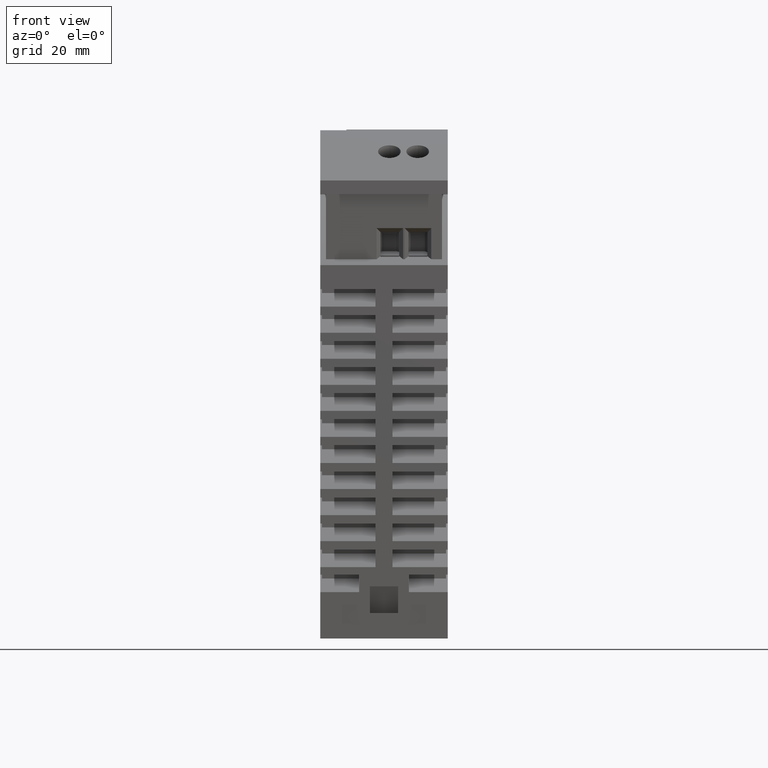
[diagram: clean part render]
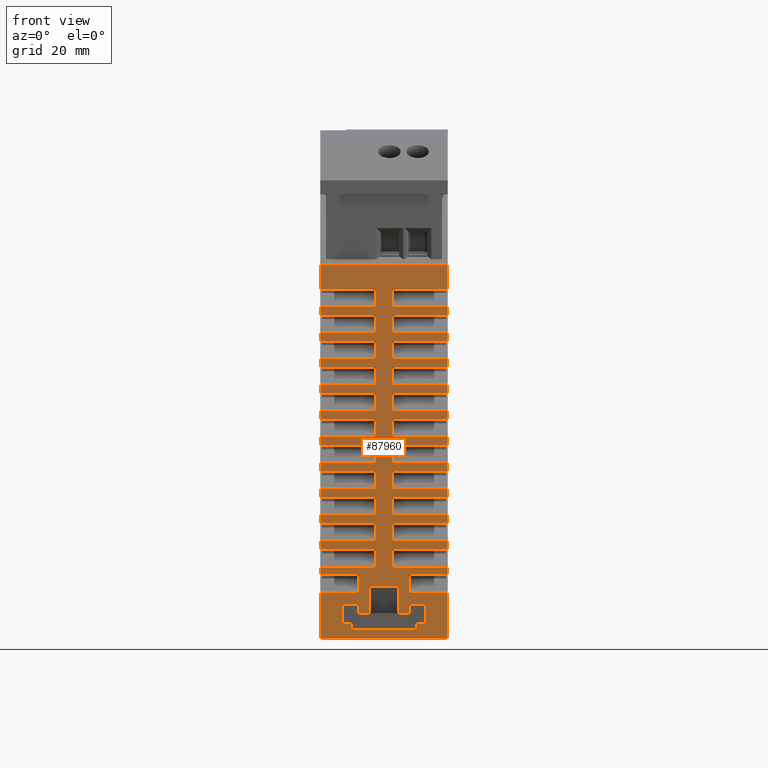
[diagram: same view with one face highlighted and labeled with its STEP entity id]
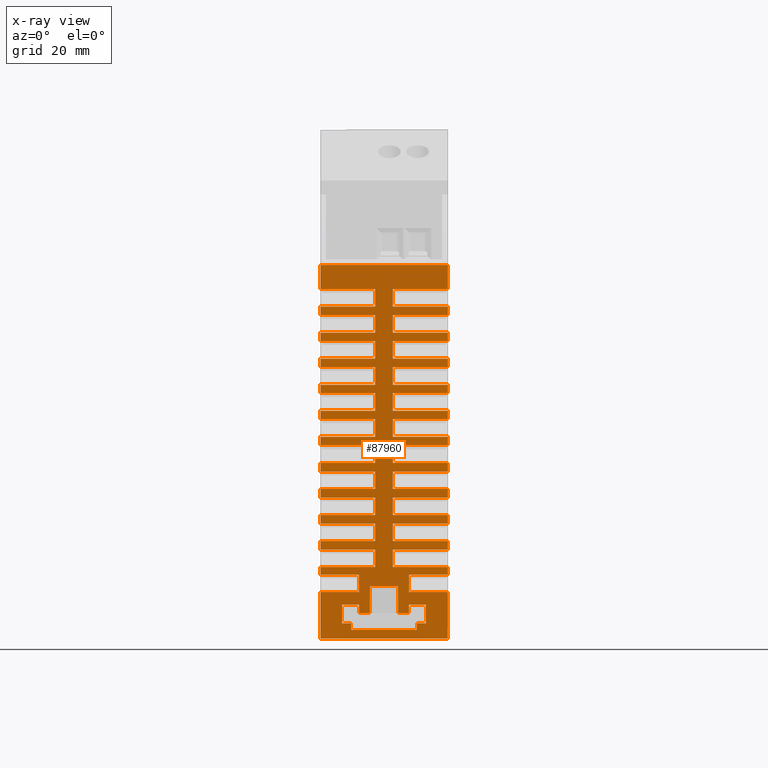
[diagram: x-ray of the same camera — body ghosted, the highlighted face saturated]
A machine part, front view. The second image highlights one B-rep face of the part: STEP entity #87960.
The next image is the same camera in x-ray: the body ghosted, the highlighted face saturated — about 0% of this face is hidden behind the body in this view.
In plain terms, the highlighted planar face has unit normal (0, -1, 0).
Its self-contained STEP definition (entity closure, byte-faithful):
#10010=CARTESIAN_POINT('',(-45.0015236073532,65.9624132898226,-21.5));
#10020=VERTEX_POINT('',#10010);
#11120=CARTESIAN_POINT('',(-45.0015236073532,65.9624132898226,1.));
#11130=VERTEX_POINT('',#11120);
#11160=CARTESIAN_POINT('',(-45.0015236073532,65.9624132898226,-54.));
#11170=DIRECTION('',(0.,0.,1.));
#11180=VECTOR('',#11170,1.);
#11190=LINE('',#11160,#11180);
#11200=EDGE_CURVE('',#10020,#11130,#11190,.T.);
#66930=CARTESIAN_POINT('',(-45.0015236073532,15.7196322079491,1.));
#66940=VERTEX_POINT('',#66930);
#66970=CARTESIAN_POINT('',(-45.0015236073671,0.,1.));
#66980=DIRECTION('',(0.,1.,0.));
#66990=VECTOR('',#66980,1.);
#67000=LINE('',#66970,#66990);
#67010=CARTESIAN_POINT('',(-45.0015236073532,17.2196322079585,1.));
#67020=VERTEX_POINT('',#67010);
#67030=EDGE_CURVE('',#66940,#67020,#67000,.T.);
#67270=CARTESIAN_POINT('',(-45.0015236073532,20.3196322079585,1.));
#67280=VERTEX_POINT('',#67270);
#67310=CARTESIAN_POINT('',(-45.0015236073532,21.8196322079584,1.));
#67320=VERTEX_POINT('',#67310);
#67330=EDGE_CURVE('',#67280,#67320,#67000,.T.);
#67570=CARTESIAN_POINT('',(-45.0015236073532,24.9196322079585,1.));
#67580=VERTEX_POINT('',#67570);
#67610=CARTESIAN_POINT('',(-45.0015236073532,26.4196322079584,1.));
#67620=VERTEX_POINT('',#67610);
#67630=EDGE_CURVE('',#67580,#67620,#67000,.T.);
#67870=CARTESIAN_POINT('',(-45.0015236073532,29.5196322079585,1.));
#67880=VERTEX_POINT('',#67870);
#67910=CARTESIAN_POINT('',(-45.0015236073532,31.0196322079584,1.));
#67920=VERTEX_POINT('',#67910);
#67930=EDGE_CURVE('',#67880,#67920,#67000,.T.);
#68170=CARTESIAN_POINT('',(-45.0015236073532,34.1196322079584,1.));
#68180=VERTEX_POINT('',#68170);
#68210=CARTESIAN_POINT('',(-45.0015236073532,35.6196322079584,1.));
#68220=VERTEX_POINT('',#68210);
#68230=EDGE_CURVE('',#68180,#68220,#67000,.T.);
#68470=CARTESIAN_POINT('',(-45.0015236073532,38.7196322079491,1.));
#68480=VERTEX_POINT('',#68470);
#68510=CARTESIAN_POINT('',(-45.0015236073532,40.2196322079583,1.));
#68520=VERTEX_POINT('',#68510);
#68530=EDGE_CURVE('',#68480,#68520,#67000,.T.);
#68770=CARTESIAN_POINT('',(-45.0015236073532,43.3196322079584,1.));
#68780=VERTEX_POINT('',#68770);
#68810=CARTESIAN_POINT('',(-45.0015236073532,44.8196322079584,1.));
#68820=VERTEX_POINT('',#68810);
#68830=EDGE_CURVE('',#68780,#68820,#67000,.T.);
#69070=CARTESIAN_POINT('',(-45.0015236073532,47.9196322079585,1.));
#69080=VERTEX_POINT('',#69070);
#69110=CARTESIAN_POINT('',(-45.0015236073532,49.4196322079585,1.));
#69120=VERTEX_POINT('',#69110);
#69130=EDGE_CURVE('',#69080,#69120,#67000,.T.);
#69370=CARTESIAN_POINT('',(-45.0015236073532,52.5196322079585,1.));
#69380=VERTEX_POINT('',#69370);
#69410=CARTESIAN_POINT('',(-45.0015236073532,54.0196322079584,1.));
#69420=VERTEX_POINT('',#69410);
#69430=EDGE_CURVE('',#69380,#69420,#67000,.T.);
#69670=CARTESIAN_POINT('',(-45.0015236073532,57.1196322079585,1.));
#69680=VERTEX_POINT('',#69670);
#69710=CARTESIAN_POINT('',(-45.0015236073532,58.6196322079583,1.));
#69720=VERTEX_POINT('',#69710);
#69730=EDGE_CURVE('',#69680,#69720,#67000,.T.);
#69970=CARTESIAN_POINT('',(-45.0015236073532,61.7196322079586,1.));
#69980=VERTEX_POINT('',#69970);
#70010=EDGE_CURVE('',#69980,#11130,#67000,.T.);
#73490=CARTESIAN_POINT('',(-45.0015236073532,0.029072276211352,1.));
#73500=VERTEX_POINT('',#73490);
#73530=CARTESIAN_POINT('',(-45.0015236073532,0.,1.));
#73540=DIRECTION('',(0.,-1.,0.));
#73550=VECTOR('',#73540,1.);
#73560=LINE('',#73530,#73550);
#73570=CARTESIAN_POINT('',(-45.0015236073532,8.20470011037345,1.));
#73580=VERTEX_POINT('',#73570);
#73590=EDGE_CURVE('',#73580,#73500,#73560,.T.);
#73830=CARTESIAN_POINT('',(-45.0015236073532,11.3047001103734,1.));
#73840=VERTEX_POINT('',#73830);
#73870=CARTESIAN_POINT('',(-45.0015236073532,12.6196322079583,1.));
#73880=VERTEX_POINT('',#73870);
#73890=EDGE_CURVE('',#73880,#73840,#73560,.T.);
#79420=CARTESIAN_POINT('',(-45.0015236073532,61.7196322079586,-8.75));
#79430=VERTEX_POINT('',#79420);
#79460=CARTESIAN_POINT('',(-45.0015236073532,61.7196322079586,-25.));
#79470=DIRECTION('',(0.,0.,-1.));
#79480=VECTOR('',#79470,1.);
#79490=LINE('',#79460,#79480);
#79500=EDGE_CURVE('',#69980,#79430,#79490,.T.);
#79980=CARTESIAN_POINT('',(-45.0015236073532,47.9196322079585,-8.75));
#79990=VERTEX_POINT('',#79980);
#80020=CARTESIAN_POINT('',(-45.0015236073532,47.9196322079585,-25.));
#80030=DIRECTION('',(0.,0.,-1.));
#80040=VECTOR('',#80030,1.);
#80050=LINE('',#80020,#80040);
#80060=EDGE_CURVE('',#69080,#79990,#80050,.T.);
#80370=CARTESIAN_POINT('',(-45.0015236073532,44.8196322079584,-8.75));
#80380=VERTEX_POINT('',#80370);
#80410=CARTESIAN_POINT('',(-45.0015236073532,0.,-8.75));
#80420=DIRECTION('',(0.,1.,0.));
#80430=VECTOR('',#80420,1.);
#80440=LINE('',#80410,#80430);
#80450=EDGE_CURVE('',#80380,#79990,#80440,.T.);
#81200=CARTESIAN_POINT('',(-45.0015236073532,90.0290722762114,1.));
#81210=DIRECTION('',(-1.,0.,0.));
#81220=DIRECTION('',(0.,-1.,0.));
#81230=AXIS2_PLACEMENT_3D('',#81200,#81210,#81220);
#81240=PLANE('',#81230);
#81250=CARTESIAN_POINT('',(-45.0015236073532,0.,-12.75));
#81260=DIRECTION('',(0.,1.,0.));
#81270=VECTOR('',#81260,1.);
#81280=LINE('',#81250,#81270);
#81290=CARTESIAN_POINT('',(-45.0015236073532,4.52907227621135,-12.75));
#81300=VERTEX_POINT('',#81290);
#81310=CARTESIAN_POINT('',(-45.0015236073532,9.22453163117316,-12.75));
#81320=VERTEX_POINT('',#81310);
#81330=EDGE_CURVE('',#81300,#81320,#81280,.T.);
#81340=ORIENTED_EDGE('',*,*,#81330,.T.);
#81350=CARTESIAN_POINT('',(-45.0015236073532,4.52907227621135,16.25));
#81360=DIRECTION('',(0.,0.,1.));
#81370=VECTOR('',#81360,1.);
#81380=LINE('',#81350,#81370);
#81390=CARTESIAN_POINT('',(-45.0015236073532,4.52907227621135,-14.65));
#81400=VERTEX_POINT('',#81390);
#81410=EDGE_CURVE('',#81400,#81300,#81380,.T.);
#81420=ORIENTED_EDGE('',*,*,#81410,.T.);
#81430=CARTESIAN_POINT('',(-45.0015236073532,0.,-14.65));
#81440=DIRECTION('',(0.,1.,0.));
#81450=VECTOR('',#81440,1.);
#81460=LINE('',#81430,#81450);
#81470=CARTESIAN_POINT('',(-45.0015236073532,6.02907227621138,-14.65));
#81480=VERTEX_POINT('',#81470);
#81490=EDGE_CURVE('',#81400,#81480,#81460,.T.);
#81500=ORIENTED_EDGE('',*,*,#81490,.F.);
#81510=CARTESIAN_POINT('',(-45.0015236073532,6.02907227621138,16.25));
#81520=DIRECTION('',(0.,0.,-1.));
#81530=VECTOR('',#81520,1.);
#81540=LINE('',#81510,#81530);
#81550=CARTESIAN_POINT('',(-45.0015236073532,6.02907227621138,-17.65));
#81560=VERTEX_POINT('',#81550);
#81570=EDGE_CURVE('',#81480,#81560,#81540,.T.);
#81580=ORIENTED_EDGE('',*,*,#81570,.F.);
#81590=CARTESIAN_POINT('',(-45.0015236073532,0.,-17.65));
#81600=DIRECTION('',(0.,-1.,0.));
#81610=VECTOR('',#81600,1.);
#81620=LINE('',#81590,#81610);
#81630=CARTESIAN_POINT('',(-45.0015236073532,2.67907227621139,-17.65));
#81640=VERTEX_POINT('',#81630);
#81650=EDGE_CURVE('',#81560,#81640,#81620,.T.);
#81660=ORIENTED_EDGE('',*,*,#81650,.F.);
#81670=CARTESIAN_POINT('',(-45.0015236073532,2.67907227621139,16.25));
#81680=DIRECTION('',(0.,0.,1.));
#81690=VECTOR('',#81680,1.);
#81700=LINE('',#81670,#81690);
#81710=CARTESIAN_POINT('',(-45.0015236073532,2.67907227621139,-16.05));
#81720=VERTEX_POINT('',#81710);
#81730=EDGE_CURVE('',#81640,#81720,#81700,.T.);
#81740=ORIENTED_EDGE('',*,*,#81730,.F.);
#81750=CARTESIAN_POINT('',(-45.0015236073532,0.,-16.05));
#81760=DIRECTION('',(0.,-1.,0.));
#81770=VECTOR('',#81760,1.);
#81780=LINE('',#81750,#81770);
#81790=CARTESIAN_POINT('',(-45.0015236073532,1.52907227621138,-16.05));
#81800=VERTEX_POINT('',#81790);
#81810=EDGE_CURVE('',#81720,#81800,#81780,.T.);
#81820=ORIENTED_EDGE('',*,*,#81810,.F.);
#81830=CARTESIAN_POINT('',(-45.0015236073532,1.52907227621138,16.25));
#81840=DIRECTION('',(0.,0.,1.));
#81850=VECTOR('',#81840,1.);
#81860=LINE('',#81830,#81850);
#81870=CARTESIAN_POINT('',(-45.0015236073532,1.52907227621138,-4.45));
#81880=VERTEX_POINT('',#81870);
#81890=EDGE_CURVE('',#81800,#81880,#81860,.T.);
#81900=ORIENTED_EDGE('',*,*,#81890,.F.);
#81910=CARTESIAN_POINT('',(-45.0015236073532,0.,-4.45));
#81920=DIRECTION('',(0.,1.,0.));
#81930=VECTOR('',#81920,1.);
#81940=LINE('',#81910,#81930);
#81950=CARTESIAN_POINT('',(-45.0015236073532,2.67907227621139,-4.45));
#81960=VERTEX_POINT('',#81950);
#81970=EDGE_CURVE('',#81880,#81960,#81940,.T.);
#81980=ORIENTED_EDGE('',*,*,#81970,.F.);
#81990=CARTESIAN_POINT('',(-45.0015236073532,2.67907227621139,16.25));
#82000=DIRECTION('',(0.,0.,1.));
#82010=VECTOR('',#82000,1.);
#82020=LINE('',#81990,#82010);
#82030=CARTESIAN_POINT('',(-45.0015236073532,2.67907227621139,-2.85));
#82040=VERTEX_POINT('',#82030);
#82050=EDGE_CURVE('',#81960,#82040,#82020,.T.);
#82060=ORIENTED_EDGE('',*,*,#82050,.F.);
#82070=CARTESIAN_POINT('',(-45.0015236073532,0.,-2.85));
#82080=DIRECTION('',(0.,1.,0.));
#82090=VECTOR('',#82080,1.);
#82100=LINE('',#82070,#82090);
#82110=CARTESIAN_POINT('',(-45.0015236073532,6.02907227621138,-2.85));
#82120=VERTEX_POINT('',#82110);
#82130=EDGE_CURVE('',#82040,#82120,#82100,.T.);
#82140=ORIENTED_EDGE('',*,*,#82130,.F.);
#82150=CARTESIAN_POINT('',(-45.0015236073532,6.02907227621138,16.25));
#82160=DIRECTION('',(0.,0.,-1.));
#82170=VECTOR('',#82160,1.);
#82180=LINE('',#82150,#82170);
#82190=CARTESIAN_POINT('',(-45.0015236073532,6.02907227621138,-5.85));
#82200=VERTEX_POINT('',#82190);
#82210=EDGE_CURVE('',#82120,#82200,#82180,.T.);
#82220=ORIENTED_EDGE('',*,*,#82210,.F.);
#82230=CARTESIAN_POINT('',(-45.0015236073532,0.,-5.85));
#82240=DIRECTION('',(0.,-1.,0.));
#82250=VECTOR('',#82240,1.);
#82260=LINE('',#82230,#82250);
#82270=CARTESIAN_POINT('',(-45.0015236073532,4.52907227621135,-5.85));
#82280=VERTEX_POINT('',#82270);
#82290=EDGE_CURVE('',#82200,#82280,#82260,.T.);
#82300=ORIENTED_EDGE('',*,*,#82290,.F.);
#82310=CARTESIAN_POINT('',(-45.0015236073532,4.52907227621135,16.25));
#82320=DIRECTION('',(0.,0.,1.));
#82330=VECTOR('',#82320,1.);
#82340=LINE('',#82310,#82330);
#82350=CARTESIAN_POINT('',(-45.0015236073532,4.52907227621135,-7.75));
#82360=VERTEX_POINT('',#82350);
#82370=EDGE_CURVE('',#82360,#82280,#82340,.T.);
#82380=ORIENTED_EDGE('',*,*,#82370,.T.);
#82390=CARTESIAN_POINT('',(-45.0015236073532,0.,-7.75));
#82400=DIRECTION('',(0.,1.,0.));
#82410=VECTOR('',#82400,1.);
#82420=LINE('',#82390,#82410);
#82430=CARTESIAN_POINT('',(-45.0015236073532,9.22453163121141,-7.75));
#82440=VERTEX_POINT('',#82430);
#82450=EDGE_CURVE('',#82360,#82440,#82420,.T.);
#82460=ORIENTED_EDGE('',*,*,#82450,.F.);
#82470=CARTESIAN_POINT('',(-45.0015236073532,9.22453163117316,16.25));
#82480=DIRECTION('',(0.,0.,-1.));
#82490=VECTOR('',#82480,1.);
#82500=LINE('',#82470,#82490);
#82510=EDGE_CURVE('',#82440,#81320,#82500,.T.);
#82520=ORIENTED_EDGE('',*,*,#82510,.F.);
#82530=EDGE_LOOP('',(#82520,#82460,#82380,#82300,#82220,#82140,#82060,
#81980,#81900,#81820,#81740,#81660,#81580,#81500,#81420,#81340));
#82540=FACE_BOUND('',#82530,.T.);
#82550=ORIENTED_EDGE('',*,*,#79500,.F.);
#82560=CARTESIAN_POINT('',(-45.0015236073532,0.,-8.75));
#82570=DIRECTION('',(0.,1.,0.));
#82580=VECTOR('',#82570,1.);
#82590=LINE('',#82560,#82580);
#82600=CARTESIAN_POINT('',(-45.0015236073532,58.6196322079583,-8.75));
#82610=VERTEX_POINT('',#82600);
#82620=EDGE_CURVE('',#82610,#79430,#82590,.T.);
#82630=ORIENTED_EDGE('',*,*,#82620,.T.);
#82640=CARTESIAN_POINT('',(-45.0015236073532,58.6196322079583,-25.));
#82650=DIRECTION('',(0.,0.,1.));
#82660=VECTOR('',#82650,1.);
#82670=LINE('',#82640,#82660);
#82680=EDGE_CURVE('',#82610,#69720,#82670,.T.);
#82690=ORIENTED_EDGE('',*,*,#82680,.F.);
#82700=ORIENTED_EDGE('',*,*,#69730,.T.);
#82710=CARTESIAN_POINT('',(-45.0015236073532,57.1196322079585,-25.));
#82720=DIRECTION('',(0.,0.,-1.));
#82730=VECTOR('',#82720,1.);
#82740=LINE('',#82710,#82730);
#82750=CARTESIAN_POINT('',(-45.0015236073532,57.1196322079585,-8.75));
#82760=VERTEX_POINT('',#82750);
#82770=EDGE_CURVE('',#69680,#82760,#82740,.T.);
#82780=ORIENTED_EDGE('',*,*,#82770,.F.);
#82790=CARTESIAN_POINT('',(-45.0015236073532,54.0196322079584,-8.75));
#82800=VERTEX_POINT('',#82790);
#82810=EDGE_CURVE('',#82800,#82760,#80440,.T.);
#82820=ORIENTED_EDGE('',*,*,#82810,.T.);
#82830=CARTESIAN_POINT('',(-45.0015236073532,54.0196322079584,-25.));
#82840=DIRECTION('',(0.,0.,1.));
#82850=VECTOR('',#82840,1.);
#82860=LINE('',#82830,#82850);
#82870=EDGE_CURVE('',#82800,#69420,#82860,.T.);
#82880=ORIENTED_EDGE('',*,*,#82870,.F.);
#82890=ORIENTED_EDGE('',*,*,#69430,.T.);
#82900=CARTESIAN_POINT('',(-45.0015236073532,52.5196322079585,-25.));
#82910=DIRECTION('',(0.,0.,-1.));
#82920=VECTOR('',#82910,1.);
#82930=LINE('',#82900,#82920);
#82940=CARTESIAN_POINT('',(-45.0015236073532,52.5196322079585,-8.75));
#82950=VERTEX_POINT('',#82940);
#82960=EDGE_CURVE('',#69380,#82950,#82930,.T.);
#82970=ORIENTED_EDGE('',*,*,#82960,.F.);
#82980=CARTESIAN_POINT('',(-45.0015236073532,49.4196322079585,-8.75));
#82990=VERTEX_POINT('',#82980);
#83000=EDGE_CURVE('',#82990,#82950,#80440,.T.);
#83010=ORIENTED_EDGE('',*,*,#83000,.T.);
#83020=CARTESIAN_POINT('',(-45.0015236073532,49.4196322079585,-25.));
#83030=DIRECTION('',(0.,0.,1.));
#83040=VECTOR('',#83030,1.);
#83050=LINE('',#83020,#83040);
#83060=EDGE_CURVE('',#82990,#69120,#83050,.T.);
#83070=ORIENTED_EDGE('',*,*,#83060,.F.);
#83080=ORIENTED_EDGE('',*,*,#69130,.T.);
#83090=ORIENTED_EDGE('',*,*,#80060,.F.);
#83100=ORIENTED_EDGE('',*,*,#80450,.T.);
#83110=CARTESIAN_POINT('',(-45.0015236073532,44.8196322079584,-25.));
#83120=DIRECTION('',(0.,0.,1.));
#83130=VECTOR('',#83120,1.);
#83140=LINE('',#83110,#83130);
#83150=EDGE_CURVE('',#80380,#68820,#83140,.T.);
#83160=ORIENTED_EDGE('',*,*,#83150,.F.);
#83170=ORIENTED_EDGE('',*,*,#68830,.T.);
#83180=CARTESIAN_POINT('',(-45.0015236073532,43.3196322079584,-25.));
#83190=DIRECTION('',(0.,0.,-1.));
#83200=VECTOR('',#83190,1.);
#83210=LINE('',#83180,#83200);
#83220=CARTESIAN_POINT('',(-45.0015236073532,43.3196322079584,-8.75));
#83230=VERTEX_POINT('',#83220);
#83240=EDGE_CURVE('',#68780,#83230,#83210,.T.);
#83250=ORIENTED_EDGE('',*,*,#83240,.F.);
#83260=CARTESIAN_POINT('',(-45.0015236073532,40.2196322079583,-8.75));
#83270=VERTEX_POINT('',#83260);
#83280=EDGE_CURVE('',#83270,#83230,#80440,.T.);
#83290=ORIENTED_EDGE('',*,*,#83280,.T.);
#83300=CARTESIAN_POINT('',(-45.0015236073532,40.2196322079583,-25.));
#83310=DIRECTION('',(0.,0.,1.));
#83320=VECTOR('',#83310,1.);
#83330=LINE('',#83300,#83320);
#83340=EDGE_CURVE('',#83270,#68520,#83330,.T.);
#83350=ORIENTED_EDGE('',*,*,#83340,.F.);
#83360=ORIENTED_EDGE('',*,*,#68530,.T.);
#83370=CARTESIAN_POINT('',(-45.0015236073532,38.7196322079491,-25.));
#83380=DIRECTION('',(0.,0.,-1.));
#83390=VECTOR('',#83380,1.);
#83400=LINE('',#83370,#83390);
#83410=CARTESIAN_POINT('',(-45.0015236073532,38.7196322079491,-8.75));
#83420=VERTEX_POINT('',#83410);
#83430=EDGE_CURVE('',#68480,#83420,#83400,.T.);
#83440=ORIENTED_EDGE('',*,*,#83430,.F.);
#83450=CARTESIAN_POINT('',(-45.0015236073532,35.6196322079584,-8.75));
#83460=VERTEX_POINT('',#83450);
#83470=EDGE_CURVE('',#83460,#83420,#80440,.T.);
#83480=ORIENTED_EDGE('',*,*,#83470,.T.);
#83490=CARTESIAN_POINT('',(-45.0015236073532,35.6196322079584,-25.));
#83500=DIRECTION('',(0.,0.,1.));
#83510=VECTOR('',#83500,1.);
#83520=LINE('',#83490,#83510);
#83530=EDGE_CURVE('',#83460,#68220,#83520,.T.);
#83540=ORIENTED_EDGE('',*,*,#83530,.F.);
#83550=ORIENTED_EDGE('',*,*,#68230,.T.);
#83560=CARTESIAN_POINT('',(-45.0015236073532,34.1196322079584,-25.));
#83570=DIRECTION('',(0.,0.,-1.));
#83580=VECTOR('',#83570,1.);
#83590=LINE('',#83560,#83580);
#83600=CARTESIAN_POINT('',(-45.0015236073532,34.1196322079584,-8.75));
#83610=VERTEX_POINT('',#83600);
#83620=EDGE_CURVE('',#68180,#83610,#83590,.T.);
#83630=ORIENTED_EDGE('',*,*,#83620,.F.);
#83640=CARTESIAN_POINT('',(-45.0015236073532,31.0196322079584,-8.75));
#83650=VERTEX_POINT('',#83640);
#83660=EDGE_CURVE('',#83650,#83610,#80440,.T.);
#83670=ORIENTED_EDGE('',*,*,#83660,.T.);
#83680=CARTESIAN_POINT('',(-45.0015236073532,31.0196322079584,-25.));
#83690=DIRECTION('',(0.,0.,1.));
#83700=VECTOR('',#83690,1.);
#83710=LINE('',#83680,#83700);
#83720=EDGE_CURVE('',#83650,#67920,#83710,.T.);
#83730=ORIENTED_EDGE('',*,*,#83720,.F.);
#83740=ORIENTED_EDGE('',*,*,#67930,.T.);
#83750=CARTESIAN_POINT('',(-45.0015236073532,29.5196322079585,-25.));
#83760=DIRECTION('',(0.,0.,-1.));
#83770=VECTOR('',#83760,1.);
#83780=LINE('',#83750,#83770);
#83790=CARTESIAN_POINT('',(-45.0015236073532,29.5196322079585,-8.75));
#83800=VERTEX_POINT('',#83790);
#83810=EDGE_CURVE('',#67880,#83800,#83780,.T.);
#83820=ORIENTED_EDGE('',*,*,#83810,.F.);
#83830=CARTESIAN_POINT('',(-45.0015236073532,26.4196322079584,-8.75));
#83840=VERTEX_POINT('',#83830);
#83850=EDGE_CURVE('',#83840,#83800,#80440,.T.);
#83860=ORIENTED_EDGE('',*,*,#83850,.T.);
#83870=CARTESIAN_POINT('',(-45.0015236073532,26.4196322079584,-25.));
#83880=DIRECTION('',(0.,0.,1.));
#83890=VECTOR('',#83880,1.);
#83900=LINE('',#83870,#83890);
#83910=EDGE_CURVE('',#83840,#67620,#83900,.T.);
#83920=ORIENTED_EDGE('',*,*,#83910,.F.);
#83930=ORIENTED_EDGE('',*,*,#67630,.T.);
#83940=CARTESIAN_POINT('',(-45.0015236073532,24.9196322079585,-25.));
#83950=DIRECTION('',(0.,0.,-1.));
#83960=VECTOR('',#83950,1.);
#83970=LINE('',#83940,#83960);
#83980=CARTESIAN_POINT('',(-45.0015236073532,24.9196322079585,-8.75));
#83990=VERTEX_POINT('',#83980);
#84000=EDGE_CURVE('',#67580,#83990,#83970,.T.);
#84010=ORIENTED_EDGE('',*,*,#84000,.F.);
#84020=CARTESIAN_POINT('',(-45.0015236073532,21.8196322079584,-8.75));
#84030=VERTEX_POINT('',#84020);
#84040=EDGE_CURVE('',#84030,#83990,#80440,.T.);
#84050=ORIENTED_EDGE('',*,*,#84040,.T.);
#84060=CARTESIAN_POINT('',(-45.0015236073532,21.8196322079584,-25.));
#84070=DIRECTION('',(0.,0.,1.));
#84080=VECTOR('',#84070,1.);
#84090=LINE('',#84060,#84080);
#84100=EDGE_CURVE('',#84030,#67320,#84090,.T.);
#84110=ORIENTED_EDGE('',*,*,#84100,.F.);
#84120=ORIENTED_EDGE('',*,*,#67330,.T.);
#84130=CARTESIAN_POINT('',(-45.0015236073532,20.3196322079585,-25.));
#84140=DIRECTION('',(0.,0.,-1.));
#84150=VECTOR('',#84140,1.);
#84160=LINE('',#84130,#84150);
#84170=CARTESIAN_POINT('',(-45.0015236073532,20.3196322079585,-8.75));
#84180=VERTEX_POINT('',#84170);
#84190=EDGE_CURVE('',#67280,#84180,#84160,.T.);
#84200=ORIENTED_EDGE('',*,*,#84190,.F.);
#84210=CARTESIAN_POINT('',(-45.0015236073532,17.2196322079585,-8.75));
#84220=VERTEX_POINT('',#84210);
#84230=EDGE_CURVE('',#84220,#84180,#80440,.T.);
#84240=ORIENTED_EDGE('',*,*,#84230,.T.);
#84250=CARTESIAN_POINT('',(-45.0015236073532,17.2196322079585,-25.));
#84260=DIRECTION('',(0.,0.,1.));
#84270=VECTOR('',#84260,1.);
#84280=LINE('',#84250,#84270);
#84290=EDGE_CURVE('',#84220,#67020,#84280,.T.);
#84300=ORIENTED_EDGE('',*,*,#84290,.F.);
#84310=ORIENTED_EDGE('',*,*,#67030,.T.);
#84320=CARTESIAN_POINT('',(-45.0015236073532,15.7196322079491,-25.));
#84330=DIRECTION('',(0.,0.,-1.));
#84340=VECTOR('',#84330,1.);
#84350=LINE('',#84320,#84340);
#84360=CARTESIAN_POINT('',(-45.0015236073532,15.7196322079491,-8.75));
#84370=VERTEX_POINT('',#84360);
#84380=EDGE_CURVE('',#66940,#84370,#84350,.T.);
#84390=ORIENTED_EDGE('',*,*,#84380,.F.);
#84400=CARTESIAN_POINT('',(-45.0015236073532,12.6196322079583,-8.75));
#84410=VERTEX_POINT('',#84400);
#84420=EDGE_CURVE('',#84410,#84370,#80440,.T.);
#84430=ORIENTED_EDGE('',*,*,#84420,.T.);
#84440=CARTESIAN_POINT('',(-45.0015236073532,12.6196322079583,-8.75));
#84450=DIRECTION('',(0.,0.,1.));
#84460=VECTOR('',#84450,1.);
#84470=LINE('',#84440,#84460);
#84480=EDGE_CURVE('',#84410,#73880,#84470,.T.);
#84490=ORIENTED_EDGE('',*,*,#84480,.F.);
#84500=ORIENTED_EDGE('',*,*,#73890,.F.);
#84510=CARTESIAN_POINT('',(-45.0015236073532,11.3047001103734,-5.85));
#84520=DIRECTION('',(0.,0.,-1.));
#84530=VECTOR('',#84520,1.);
#84540=LINE('',#84510,#84530);
#84550=CARTESIAN_POINT('',(-45.0015236073532,11.3047001103734,-5.85));
#84560=VERTEX_POINT('',#84550);
#84570=EDGE_CURVE('',#73840,#84560,#84540,.T.);
#84580=ORIENTED_EDGE('',*,*,#84570,.F.);
#84590=CARTESIAN_POINT('',(-45.0015236073532,0.,-5.85));
#84600=DIRECTION('',(0.,1.,0.));
#84610=VECTOR('',#84600,1.);
#84620=LINE('',#84590,#84610);
#84630=CARTESIAN_POINT('',(-45.0015236073532,8.20470011037345,-5.85));
#84640=VERTEX_POINT('',#84630);
#84650=EDGE_CURVE('',#84640,#84560,#84620,.T.);
#84660=ORIENTED_EDGE('',*,*,#84650,.T.);
#84670=CARTESIAN_POINT('',(-45.0015236073532,8.20470011037345,-5.85));
#84680=DIRECTION('',(0.,0.,1.));
#84690=VECTOR('',#84680,1.);
#84700=LINE('',#84670,#84690);
#84710=EDGE_CURVE('',#84640,#73580,#84700,.T.);
#84720=ORIENTED_EDGE('',*,*,#84710,.F.);
#84730=ORIENTED_EDGE('',*,*,#73590,.F.);
#84740=CARTESIAN_POINT('',(-45.0015236073532,0.029072276211352,16.25));
#84750=DIRECTION('',(0.,0.,1.));
#84760=VECTOR('',#84750,1.);
#84770=LINE('',#84740,#84760);
#84780=CARTESIAN_POINT('',(-45.0015236073532,0.029072276211352,-21.5));
#84790=VERTEX_POINT('',#84780);
#84800=EDGE_CURVE('',#84790,#73500,#84770,.T.);
#84810=ORIENTED_EDGE('',*,*,#84800,.T.);
#84820=CARTESIAN_POINT('',(-45.0015236073532,0.,-21.5));
#84830=DIRECTION('',(0.,1.,0.));
#84840=VECTOR('',#84830,1.);
#84850=LINE('',#84820,#84840);
#84860=CARTESIAN_POINT('',(-45.0015236073532,8.20470011037345,-21.5));
#84870=VERTEX_POINT('',#84860);
#84880=EDGE_CURVE('',#84790,#84870,#84850,.T.);
#84890=ORIENTED_EDGE('',*,*,#84880,.F.);
#84900=CARTESIAN_POINT('',(-45.0015236073532,8.20470011037345,-14.65));
#84910=DIRECTION('',(0.,0.,-1.));
#84920=VECTOR('',#84910,1.);
#84930=LINE('',#84900,#84920);
#84940=CARTESIAN_POINT('',(-45.0015236073532,8.20470011037345,-14.65));
#84950=VERTEX_POINT('',#84940);
#84960=EDGE_CURVE('',#84950,#84870,#84930,.T.);
#84970=ORIENTED_EDGE('',*,*,#84960,.T.);
#84980=CARTESIAN_POINT('',(-45.0015236073532,0.,-14.65));
#84990=DIRECTION('',(0.,1.,0.));
#85000=VECTOR('',#84990,1.);
#85010=LINE('',#84980,#85000);
#85020=CARTESIAN_POINT('',(-45.0015236073532,11.3047001103734,-14.65));
#85030=VERTEX_POINT('',#85020);
#85040=EDGE_CURVE('',#84950,#85030,#85010,.T.);
#85050=ORIENTED_EDGE('',*,*,#85040,.F.);
#85060=CARTESIAN_POINT('',(-45.0015236073532,11.3047001103734,-14.65));
#85070=DIRECTION('',(0.,0.,1.));
#85080=VECTOR('',#85070,1.);
#85090=LINE('',#85060,#85080);
#85100=CARTESIAN_POINT('',(-45.0015236073532,11.3047001103734,-21.5));
#85110=VERTEX_POINT('',#85100);
#85120=EDGE_CURVE('',#85110,#85030,#85090,.T.);
#85130=ORIENTED_EDGE('',*,*,#85120,.T.);
#85140=CARTESIAN_POINT('',(-45.0015236073532,12.6196322079583,-21.5));
#85150=VERTEX_POINT('',#85140);
#85160=EDGE_CURVE('',#85110,#85150,#84850,.T.);
#85170=ORIENTED_EDGE('',*,*,#85160,.F.);
#85180=CARTESIAN_POINT('',(-45.0015236073532,12.6196322079583,-37.45));
#85190=DIRECTION('',(0.,0.,1.));
#85200=VECTOR('',#85190,1.);
#85210=LINE('',#85180,#85200);
#85220=CARTESIAN_POINT('',(-45.0015236073532,12.6196322079583,-11.75));
#85230=VERTEX_POINT('',#85220);
#85240=EDGE_CURVE('',#85150,#85230,#85210,.T.);
#85250=ORIENTED_EDGE('',*,*,#85240,.F.);
#85260=CARTESIAN_POINT('',(-45.0015236073532,0.,-11.75));
#85270=DIRECTION('',(0.,-1.,0.));
#85280=VECTOR('',#85270,1.);
#85290=LINE('',#85260,#85280);
#85300=CARTESIAN_POINT('',(-45.0015236073532,15.7196322079492,-11.75));
#85310=VERTEX_POINT('',#85300);
#85320=EDGE_CURVE('',#85310,#85230,#85290,.T.);
#85330=ORIENTED_EDGE('',*,*,#85320,.T.);
#85340=CARTESIAN_POINT('',(-45.0015236073532,15.7196322079492,-53.7));
#85350=DIRECTION('',(0.,0.,-1.));
#85360=VECTOR('',#85350,1.);
#85370=LINE('',#85340,#85360);
#85380=CARTESIAN_POINT('',(-45.0015236073532,15.7196322079492,-21.5));
#85390=VERTEX_POINT('',#85380);
#85400=EDGE_CURVE('',#85310,#85390,#85370,.T.);
#85410=ORIENTED_EDGE('',*,*,#85400,.F.);
#85420=CARTESIAN_POINT('',(-45.0015236073532,0.,-21.5));
#85430=DIRECTION('',(0.,-1.,0.));
#85440=VECTOR('',#85430,1.);
#85450=LINE('',#85420,#85440);
#85460=CARTESIAN_POINT('',(-45.0015236073532,17.2196322079584,-21.5));
#85470=VERTEX_POINT('',#85460);
#85480=EDGE_CURVE('',#85470,#85390,#85450,.T.);
#85490=ORIENTED_EDGE('',*,*,#85480,.T.);
#85500=CARTESIAN_POINT('',(-45.0015236073532,17.2196322079584,-53.7));
#85510=DIRECTION('',(0.,0.,1.));
#85520=VECTOR('',#85510,1.);
#85530=LINE('',#85500,#85520);
#85540=CARTESIAN_POINT('',(-45.0015236073532,17.2196322079584,-11.75));
#85550=VERTEX_POINT('',#85540);
#85560=EDGE_CURVE('',#85470,#85550,#85530,.T.);
#85570=ORIENTED_EDGE('',*,*,#85560,.F.);
#85580=CARTESIAN_POINT('',(-45.0015236073532,20.3196322079584,-11.75));
#85590=VERTEX_POINT('',#85580);
#85600=EDGE_CURVE('',#85590,#85550,#85290,.T.);
#85610=ORIENTED_EDGE('',*,*,#85600,.T.);
#85620=CARTESIAN_POINT('',(-45.0015236073532,20.3196322079584,-53.7));
#85630=DIRECTION('',(0.,0.,-1.));
#85640=VECTOR('',#85630,1.);
#85650=LINE('',#85620,#85640);
#85660=CARTESIAN_POINT('',(-45.0015236073532,20.3196322079584,-21.5));
#85670=VERTEX_POINT('',#85660);
#85680=EDGE_CURVE('',#85590,#85670,#85650,.T.);
#85690=ORIENTED_EDGE('',*,*,#85680,.F.);
#85700=CARTESIAN_POINT('',(-45.0015236073532,21.8196322079584,-21.5));
#85710=VERTEX_POINT('',#85700);
#85720=EDGE_CURVE('',#85710,#85670,#85450,.T.);
#85730=ORIENTED_EDGE('',*,*,#85720,.T.);
#85740=CARTESIAN_POINT('',(-45.0015236073532,21.8196322079584,-53.7));
#85750=DIRECTION('',(0.,0.,1.));
#85760=VECTOR('',#85750,1.);
#85770=LINE('',#85740,#85760);
#85780=CARTESIAN_POINT('',(-45.0015236073532,21.8196322079584,-11.75));
#85790=VERTEX_POINT('',#85780);
#85800=EDGE_CURVE('',#85710,#85790,#85770,.T.);
#85810=ORIENTED_EDGE('',*,*,#85800,.F.);
#85820=CARTESIAN_POINT('',(-45.0015236073532,24.9196322079585,-11.75));
#85830=VERTEX_POINT('',#85820);
#85840=EDGE_CURVE('',#85830,#85790,#85290,.T.);
#85850=ORIENTED_EDGE('',*,*,#85840,.T.);
#85860=CARTESIAN_POINT('',(-45.0015236073532,24.9196322079585,-53.7));
#85870=DIRECTION('',(0.,0.,-1.));
#85880=VECTOR('',#85870,1.);
#85890=LINE('',#85860,#85880);
#85900=CARTESIAN_POINT('',(-45.0015236073532,24.9196322079585,-21.5));
#85910=VERTEX_POINT('',#85900);
#85920=EDGE_CURVE('',#85830,#85910,#85890,.T.);
#85930=ORIENTED_EDGE('',*,*,#85920,.F.);
#85940=CARTESIAN_POINT('',(-45.0015236073532,26.4196322079583,-21.5));
#85950=VERTEX_POINT('',#85940);
#85960=EDGE_CURVE('',#85950,#85910,#85450,.T.);
#85970=ORIENTED_EDGE('',*,*,#85960,.T.);
#85980=CARTESIAN_POINT('',(-45.0015236073532,26.4196322079583,-53.7));
#85990=DIRECTION('',(0.,0.,1.));
#86000=VECTOR('',#85990,1.);
#86010=LINE('',#85980,#86000);
#86020=CARTESIAN_POINT('',(-45.0015236073532,26.4196322079583,-11.75));
#86030=VERTEX_POINT('',#86020);
#86040=EDGE_CURVE('',#85950,#86030,#86010,.T.);
#86050=ORIENTED_EDGE('',*,*,#86040,.F.);
#86060=CARTESIAN_POINT('',(-45.0015236073532,29.5196322079585,-11.75));
#86070=VERTEX_POINT('',#86060);
#86080=EDGE_CURVE('',#86070,#86030,#85290,.T.);
#86090=ORIENTED_EDGE('',*,*,#86080,.T.);
#86100=CARTESIAN_POINT('',(-45.0015236073532,29.5196322079585,-53.7));
#86110=DIRECTION('',(0.,0.,-1.));
#86120=VECTOR('',#86110,1.);
#86130=LINE('',#86100,#86120);
#86140=CARTESIAN_POINT('',(-45.0015236073532,29.5196322079585,-21.5));
#86150=VERTEX_POINT('',#86140);
#86160=EDGE_CURVE('',#86070,#86150,#86130,.T.);
#86170=ORIENTED_EDGE('',*,*,#86160,.F.);
#86180=CARTESIAN_POINT('',(-45.0015236073532,31.0196322079585,-21.5));
#86190=VERTEX_POINT('',#86180);
#86200=EDGE_CURVE('',#86190,#86150,#85450,.T.);
#86210=ORIENTED_EDGE('',*,*,#86200,.T.);
#86220=CARTESIAN_POINT('',(-45.0015236073532,31.0196322079585,-53.7));
#86230=DIRECTION('',(0.,0.,1.));
#86240=VECTOR('',#86230,1.);
#86250=LINE('',#86220,#86240);
#86260=CARTESIAN_POINT('',(-45.0015236073532,31.0196322079585,-11.75));
#86270=VERTEX_POINT('',#86260);
#86280=EDGE_CURVE('',#86190,#86270,#86250,.T.);
#86290=ORIENTED_EDGE('',*,*,#86280,.F.);
#86300=CARTESIAN_POINT('',(-45.0015236073532,34.1196322079584,-11.75));
#86310=VERTEX_POINT('',#86300);
#86320=EDGE_CURVE('',#86310,#86270,#85290,.T.);
#86330=ORIENTED_EDGE('',*,*,#86320,.T.);
#86340=CARTESIAN_POINT('',(-45.0015236073532,34.1196322079584,-53.7));
#86350=DIRECTION('',(0.,0.,-1.));
#86360=VECTOR('',#86350,1.);
#86370=LINE('',#86340,#86360);
#86380=CARTESIAN_POINT('',(-45.0015236073532,34.1196322079584,-21.5));
#86390=VERTEX_POINT('',#86380);
#86400=EDGE_CURVE('',#86310,#86390,#86370,.T.);
#86410=ORIENTED_EDGE('',*,*,#86400,.F.);
#86420=CARTESIAN_POINT('',(-45.0015236073532,35.6196322079584,-21.5));
#86430=VERTEX_POINT('',#86420);
#86440=EDGE_CURVE('',#86430,#86390,#85450,.T.);
#86450=ORIENTED_EDGE('',*,*,#86440,.T.);
#86460=CARTESIAN_POINT('',(-45.0015236073532,35.6196322079584,-53.7));
#86470=DIRECTION('',(0.,0.,1.));
#86480=VECTOR('',#86470,1.);
#86490=LINE('',#86460,#86480);
#86500=CARTESIAN_POINT('',(-45.0015236073532,35.6196322079584,-11.75));
#86510=VERTEX_POINT('',#86500);
#86520=EDGE_CURVE('',#86430,#86510,#86490,.T.);
#86530=ORIENTED_EDGE('',*,*,#86520,.F.);
#86540=CARTESIAN_POINT('',(-45.0015236073532,38.7196322079491,-11.75));
#86550=VERTEX_POINT('',#86540);
#86560=EDGE_CURVE('',#86550,#86510,#85290,.T.);
#86570=ORIENTED_EDGE('',*,*,#86560,.T.);
#86580=CARTESIAN_POINT('',(-45.0015236073532,38.7196322079491,-53.7));
#86590=DIRECTION('',(0.,0.,-1.));
#86600=VECTOR('',#86590,1.);
#86610=LINE('',#86580,#86600);
#86620=CARTESIAN_POINT('',(-45.0015236073532,38.7196322079491,-21.5));
#86630=VERTEX_POINT('',#86620);
#86640=EDGE_CURVE('',#86550,#86630,#86610,.T.);
#86650=ORIENTED_EDGE('',*,*,#86640,.F.);
#86660=CARTESIAN_POINT('',(-45.0015236073532,40.2196322079583,-21.5));
#86670=VERTEX_POINT('',#86660);
#86680=EDGE_CURVE('',#86670,#86630,#85450,.T.);
#86690=ORIENTED_EDGE('',*,*,#86680,.T.);
#86700=CARTESIAN_POINT('',(-45.0015236073532,40.2196322079583,-53.7));
#86710=DIRECTION('',(0.,0.,1.));
#86720=VECTOR('',#86710,1.);
#86730=LINE('',#86700,#86720);
#86740=CARTESIAN_POINT('',(-45.0015236073532,40.2196322079583,-11.75));
#86750=VERTEX_POINT('',#86740);
#86760=EDGE_CURVE('',#86670,#86750,#86730,.T.);
#86770=ORIENTED_EDGE('',*,*,#86760,.F.);
#86780=CARTESIAN_POINT('',(-45.0015236073532,43.3196322079583,-11.75));
#86790=VERTEX_POINT('',#86780);
#86800=EDGE_CURVE('',#86790,#86750,#85290,.T.);
#86810=ORIENTED_EDGE('',*,*,#86800,.T.);
#86820=CARTESIAN_POINT('',(-45.0015236073532,43.3196322079583,-53.7));
#86830=DIRECTION('',(0.,0.,-1.));
#86840=VECTOR('',#86830,1.);
#86850=LINE('',#86820,#86840);
#86860=CARTESIAN_POINT('',(-45.0015236073532,43.3196322079583,-21.5));
#86870=VERTEX_POINT('',#86860);
#86880=EDGE_CURVE('',#86790,#86870,#86850,.T.);
#86890=ORIENTED_EDGE('',*,*,#86880,.F.);
#86900=CARTESIAN_POINT('',(-45.0015236073532,44.8196322079584,-21.5));
#86910=VERTEX_POINT('',#86900);
#86920=EDGE_CURVE('',#86910,#86870,#85450,.T.);
#86930=ORIENTED_EDGE('',*,*,#86920,.T.);
#86940=CARTESIAN_POINT('',(-45.0015236073532,44.8196322079584,-53.7));
#86950=DIRECTION('',(0.,0.,1.));
#86960=VECTOR('',#86950,1.);
#86970=LINE('',#86940,#86960);
#86980=CARTESIAN_POINT('',(-45.0015236073532,44.8196322079584,-11.75));
#86990=VERTEX_POINT('',#86980);
#87000=EDGE_CURVE('',#86910,#86990,#86970,.T.);
#87010=ORIENTED_EDGE('',*,*,#87000,.F.);
#87020=CARTESIAN_POINT('',(-45.0015236073532,47.9196322079584,-11.75));
#87030=VERTEX_POINT('',#87020);
#87040=EDGE_CURVE('',#87030,#86990,#85290,.T.);
#87050=ORIENTED_EDGE('',*,*,#87040,.T.);
#87060=CARTESIAN_POINT('',(-45.0015236073532,47.9196322079584,-53.7));
#87070=DIRECTION('',(0.,0.,-1.));
#87080=VECTOR('',#87070,1.);
#87090=LINE('',#87060,#87080);
#87100=CARTESIAN_POINT('',(-45.0015236073532,47.9196322079584,-21.5));
#87110=VERTEX_POINT('',#87100);
#87120=EDGE_CURVE('',#87030,#87110,#87090,.T.);
#87130=ORIENTED_EDGE('',*,*,#87120,.F.);
#87140=CARTESIAN_POINT('',(-45.0015236073532,49.4196322079584,-21.5));
#87150=VERTEX_POINT('',#87140);
#87160=EDGE_CURVE('',#87150,#87110,#85450,.T.);
#87170=ORIENTED_EDGE('',*,*,#87160,.T.);
#87180=CARTESIAN_POINT('',(-45.0015236073532,49.4196322079584,-53.7));
#87190=DIRECTION('',(0.,0.,1.));
#87200=VECTOR('',#87190,1.);
#87210=LINE('',#87180,#87200);
#87220=CARTESIAN_POINT('',(-45.0015236073532,49.4196322079584,-11.75));
#87230=VERTEX_POINT('',#87220);
#87240=EDGE_CURVE('',#87150,#87230,#87210,.T.);
#87250=ORIENTED_EDGE('',*,*,#87240,.F.);
#87260=CARTESIAN_POINT('',(-45.0015236073532,52.5196322079585,-11.75));
#87270=VERTEX_POINT('',#87260);
#87280=EDGE_CURVE('',#87270,#87230,#85290,.T.);
#87290=ORIENTED_EDGE('',*,*,#87280,.T.);
#87300=CARTESIAN_POINT('',(-45.0015236073532,52.5196322079585,-53.7));
#87310=DIRECTION('',(0.,0.,-1.));
#87320=VECTOR('',#87310,1.);
#87330=LINE('',#87300,#87320);
#87340=CARTESIAN_POINT('',(-45.0015236073532,52.5196322079585,-21.5));
#87350=VERTEX_POINT('',#87340);
#87360=EDGE_CURVE('',#87270,#87350,#87330,.T.);
#87370=ORIENTED_EDGE('',*,*,#87360,.F.);
#87380=CARTESIAN_POINT('',(-45.0015236073532,54.0196322079584,-21.5));
#87390=VERTEX_POINT('',#87380);
#87400=EDGE_CURVE('',#87390,#87350,#85450,.T.);
#87410=ORIENTED_EDGE('',*,*,#87400,.T.);
#87420=CARTESIAN_POINT('',(-45.0015236073532,54.0196322079584,-53.7));
#87430=DIRECTION('',(0.,0.,1.));
#87440=VECTOR('',#87430,1.);
#87450=LINE('',#87420,#87440);
#87460=CARTESIAN_POINT('',(-45.0015236073532,54.0196322079584,-11.75));
#87470=VERTEX_POINT('',#87460);
#87480=EDGE_CURVE('',#87390,#87470,#87450,.T.);
#87490=ORIENTED_EDGE('',*,*,#87480,.F.);
#87500=CARTESIAN_POINT('',(-45.0015236073532,57.1196322079583,-11.75));
#87510=VERTEX_POINT('',#87500);
#87520=EDGE_CURVE('',#87510,#87470,#85290,.T.);
#87530=ORIENTED_EDGE('',*,*,#87520,.T.);
#87540=CARTESIAN_POINT('',(-45.0015236073532,57.1196322079583,-53.7));
#87550=DIRECTION('',(0.,0.,-1.));
#87560=VECTOR('',#87550,1.);
#87570=LINE('',#87540,#87560);
#87580=CARTESIAN_POINT('',(-45.0015236073532,57.1196322079583,-21.5));
#87590=VERTEX_POINT('',#87580);
#87600=EDGE_CURVE('',#87510,#87590,#87570,.T.);
#87610=ORIENTED_EDGE('',*,*,#87600,.F.);
#87620=CARTESIAN_POINT('',(-45.0015236073532,58.6196322079584,-21.5));
#87630=VERTEX_POINT('',#87620);
#87640=EDGE_CURVE('',#87630,#87590,#85450,.T.);
#87650=ORIENTED_EDGE('',*,*,#87640,.T.);
#87660=CARTESIAN_POINT('',(-45.0015236073532,58.6196322079584,-53.7));
#87670=DIRECTION('',(0.,0.,1.));
#87680=VECTOR('',#87670,1.);
#87690=LINE('',#87660,#87680);
#87700=CARTESIAN_POINT('',(-45.0015236073532,58.6196322079584,-11.75));
#87710=VERTEX_POINT('',#87700);
#87720=EDGE_CURVE('',#87630,#87710,#87690,.T.);
#87730=ORIENTED_EDGE('',*,*,#87720,.F.);
#87740=CARTESIAN_POINT('',(-45.0015236073532,0.,-11.75));
#87750=DIRECTION('',(0.,-1.,0.));
#87760=VECTOR('',#87750,1.);
#87770=LINE('',#87740,#87760);
#87780=CARTESIAN_POINT('',(-45.0015236073532,61.7196322079584,-11.75));
#87790=VERTEX_POINT('',#87780);
#87800=EDGE_CURVE('',#87790,#87710,#87770,.T.);
#87810=ORIENTED_EDGE('',*,*,#87800,.T.);
#87820=CARTESIAN_POINT('',(-45.0015236073532,61.7196322079584,-53.7));
#87830=DIRECTION('',(0.,0.,-1.));
#87840=VECTOR('',#87830,1.);
#87850=LINE('',#87820,#87840);
#87860=CARTESIAN_POINT('',(-45.0015236073532,61.7196322079584,-21.5));
#87870=VERTEX_POINT('',#87860);
#87880=EDGE_CURVE('',#87790,#87870,#87850,.T.);
#87890=ORIENTED_EDGE('',*,*,#87880,.F.);
#87900=EDGE_CURVE('',#10020,#87870,#85450,.T.);
#87910=ORIENTED_EDGE('',*,*,#87900,.T.);
#87920=ORIENTED_EDGE('',*,*,#11200,.F.);
#87930=ORIENTED_EDGE('',*,*,#70010,.T.);
#87940=EDGE_LOOP('',(#87930,#87920,#87910,#87890,#87810,#87730,#87650,
#87610,#87530,#87490,#87410,#87370,#87290,#87250,#87170,#87130,#87050,
#87010,#86930,#86890,#86810,#86770,#86690,#86650,#86570,#86530,#86450,
#86410,#86330,#86290,#86210,#86170,#86090,#86050,#85970,#85930,#85850,
#85810,#85730,#85690,#85610,#85570,#85490,#85410,#85330,#85250,#85170,
#85130,#85050,#84970,#84890,#84810,#84730,#84720,#84660,#84580,#84500,
#84490,#84430,#84390,#84310,#84300,#84240,#84200,#84120,#84110,#84050,
#84010,#83930,#83920,#83860,#83820,#83740,#83730,#83670,#83630,#83550,
#83540,#83480,#83440,#83360,#83350,#83290,#83250,#83170,#83160,#83100,
#83090,#83080,#83070,#83010,#82970,#82890,#82880,#82820,#82780,#82700,
#82690,#82630,#82550));
#87950=FACE_OUTER_BOUND('',#87940,.T.);
#87960=ADVANCED_FACE('',(#82540,#87950),#81240,.T.);